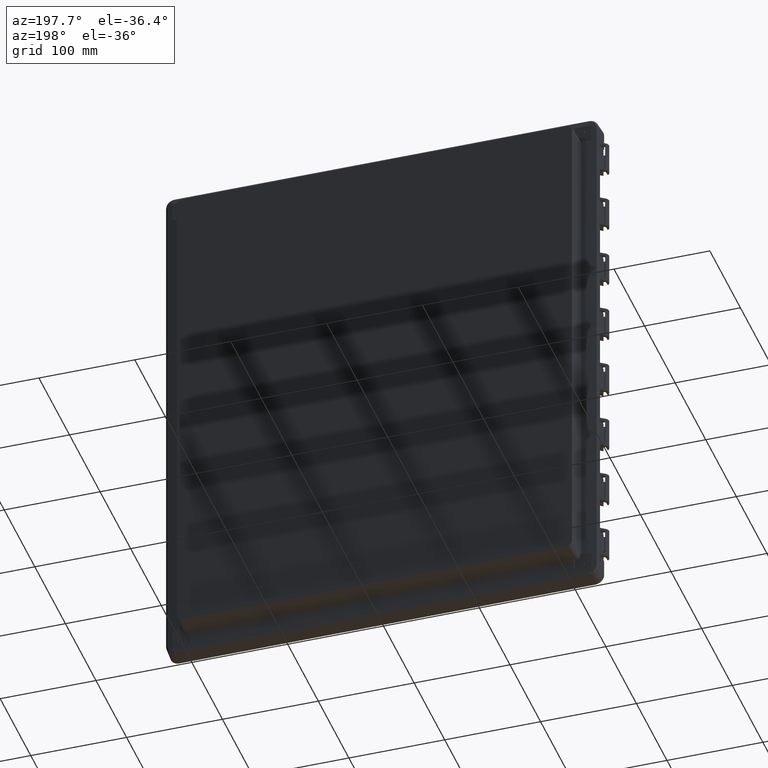
[diagram: clean part render]
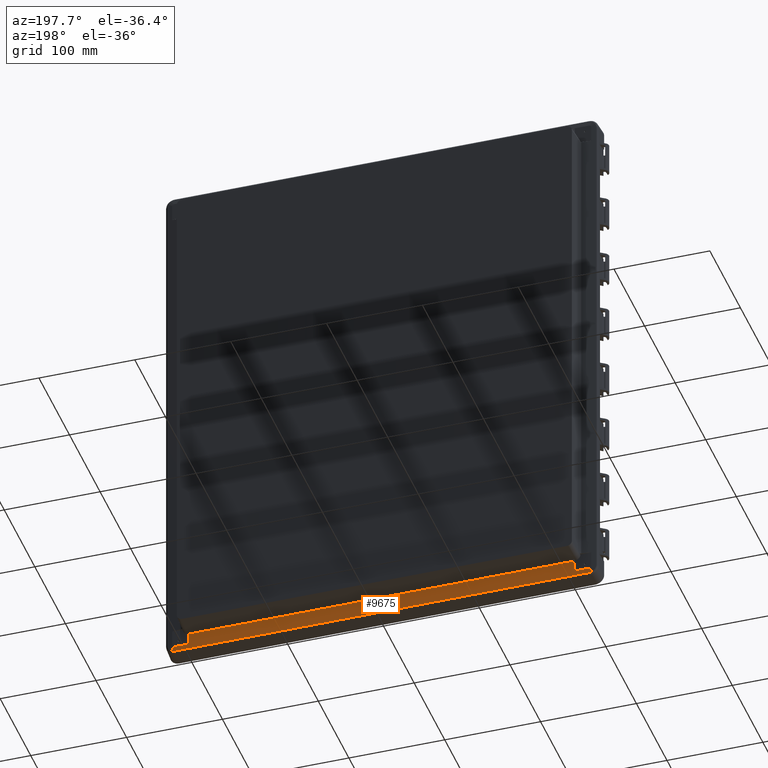
[diagram: same view with one face highlighted and labeled with its STEP entity id]
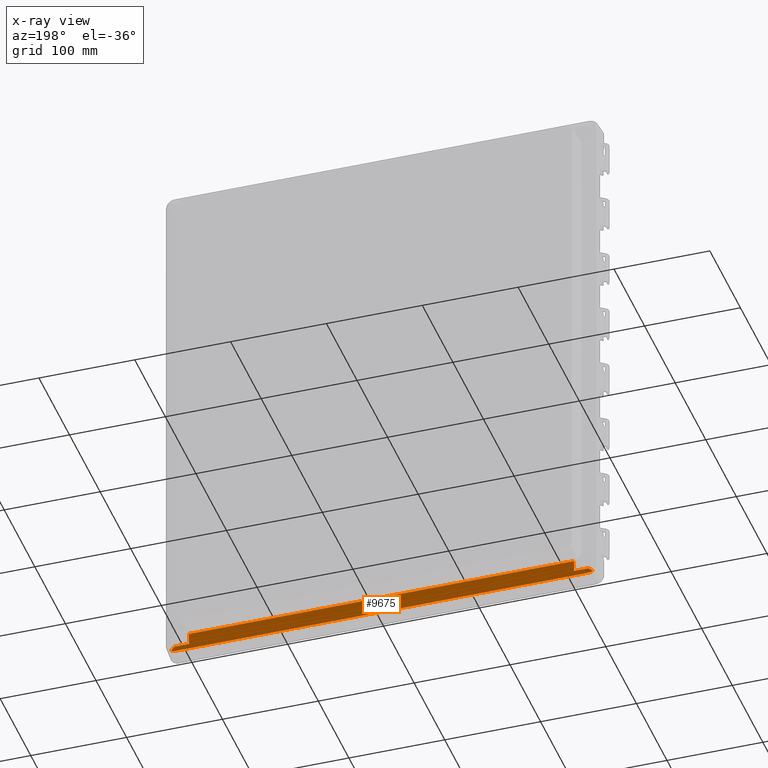
[diagram: x-ray of the same camera — body ghosted, the highlighted face saturated]
A machine part, auxiliary view. The second image highlights one B-rep face of the part: STEP entity #9675.
The next image is the same camera in x-ray: the body ghosted, the highlighted face saturated — about 0% of this face is hidden behind the body in this view.
In plain terms, the highlighted planar face has unit normal (0, -0.9954, 0.0958).
Its self-contained STEP definition (entity closure, byte-faithful):
#7 = CARTESIAN_POINT ( 'NONE',  ( -216.0049375003000000, 5.777531055259000700, -278.3363505158000100 ) ) ;
#98 = ORIENTED_EDGE ( 'NONE', *, *, #6139, .T. ) ;
#185 = VERTEX_POINT ( 'NONE', #7 ) ;
#313 = CARTESIAN_POINT ( 'NONE',  ( -217.7372608833572900, 5.796387470282691200, -278.1405191788059000 ) ) ;
#358 = VECTOR ( 'NONE', #5517, 1000.000000000000000 ) ;
#492 = CARTESIAN_POINT ( 'NONE',  ( 217.3995006904592300, 6.138320091623779900, -274.5894131314651100 ) ) ;
#547 = VERTEX_POINT ( 'NONE', #15652 ) ;
#1115 = VERTEX_POINT ( 'NONE', #10327 ) ;
#1142 = CARTESIAN_POINT ( 'NONE',  ( 200.8719366674586100, 6.628392870464217000, -269.4998127251008700 ) ) ;
#1525 = B_SPLINE_CURVE_WITH_KNOTS ( 'NONE', 3,
 ( #8217, #5990, #3790, #1564 ),
 .UNSPECIFIED., .F., .F.,
 ( 4, 4 ),
 ( 0.0000000000000000000, 1.000000000000000000 ),
 .UNSPECIFIED. ) ;
#1564 = CARTESIAN_POINT ( 'NONE',  ( -216.1040984395999900, 6.263053141324999900, -273.2940108812999800 ) ) ;
#1856 = EDGE_LOOP ( 'NONE', ( #6333, #3701, #6354, #4880, #20766, #19170, #98, #9166, #20407, #13266 ) ) ;
#2060 = CARTESIAN_POINT ( 'NONE',  ( -200.8448150179000000, 7.359072328713001100, -261.9114164127000200 ) ) ;
#2553 = CARTESIAN_POINT ( 'NONE',  ( -217.3966424438995900, 5.789345464886709500, -278.2136532010835600 ) ) ;
#2712 = CARTESIAN_POINT ( 'NONE',  ( 218.6949029413796400, 6.013587041928261100, -275.8848153815696900 ) ) ;
#3350 = CARTESIAN_POINT ( 'NONE',  ( 200.8583758426793200, 6.993732599597505500, -265.7056145689013500 ) ) ;
#3701 = ORIENTED_EDGE ( 'NONE', *, *, #11635, .T. ) ;
#3790 = CARTESIAN_POINT ( 'NONE',  ( -217.3995006908869200, 6.138320091655431900, -274.5894131311971500 ) ) ;
#3927 = B_SPLINE_CURVE_WITH_KNOTS ( 'NONE', 3,
 ( #7792, #3350, #1142, #20456 ),
 .UNSPECIFIED., .F., .F.,
 ( 4, 4 ),
 ( 0.0000000000000000000, 1.000000000000000000 ),
 .UNSPECIFIED. ) ;
#4160 = VERTEX_POINT ( 'NONE', #15200 ) ;
#4163 = VERTEX_POINT ( 'NONE', #12982 ) ;
#4203 = VERTEX_POINT ( 'NONE', #8023 ) ;
#4288 = VERTEX_POINT ( 'NONE', #8147 ) ;
#4355 = VERTEX_POINT ( 'NONE', #11534 ) ;
#4459 = VERTEX_POINT ( 'NONE', #13890 ) ;
#4561 = FACE_OUTER_BOUND ( 'NONE', #1856, .T. ) ;
#4687 = VECTOR ( 'NONE', #15985, 1000.000000000000000 ) ;
#4766 = CARTESIAN_POINT ( 'NONE',  ( -216.7059125722600200, 5.779902103896631600, -278.3117262547365800 ) ) ;
#4880 = ORIENTED_EDGE ( 'NONE', *, *, #4908, .T. ) ;
#4908 = EDGE_CURVE ( 'NONE', #4160, #4163, #9989, .T. ) ;
#5146 = CARTESIAN_POINT ( 'NONE',  ( 216.0049375003000000, 5.777531053140999800, -278.3363505155999700 ) ) ;
#5517 = DIRECTION ( 'NONE',  ( 1.000000000000000000, 0.0000000000000000000, 0.0000000000000000000 ) ) ;
#5573 = EDGE_CURVE ( 'NONE', #19329, #4160, #1525, .T. ) ;
#5990 = CARTESIAN_POINT ( 'NONE',  ( -218.6949029422434900, 6.013587041986583300, -275.8848153810248500 ) ) ;
#6139 = EDGE_CURVE ( 'NONE', #4288, #4355, #3927, .T. ) ;
#6333 = ORIENTED_EDGE ( 'NONE', *, *, #6950, .T. ) ;
#6354 = ORIENTED_EDGE ( 'NONE', *, *, #5573, .T. ) ;
#6950 = EDGE_CURVE ( 'NONE', #547, #185, #16596, .T. ) ;
#6981 = CARTESIAN_POINT ( 'NONE',  ( -216.3571325696667600, 5.777537861505446200, -278.3362798507628200 ) ) ;
#7150 = CARTESIAN_POINT ( 'NONE',  ( 219.9903051923000100, 5.888835322671999600, -277.1802158340000200 ) ) ;
#7360 = CARTESIAN_POINT ( 'NONE',  ( 216.7105626314623000, 5.777553709425019300, -278.3361152638252100 ) ) ;
#7728 = CARTESIAN_POINT ( 'NONE',  ( -216.1040984395999900, 6.263053141324999900, -273.2940108812999800 ) ) ;
#7792 = CARTESIAN_POINT ( 'NONE',  ( 200.8448150179000000, 7.359072328713001100, -261.9114164127000200 ) ) ;
#8023 = CARTESIAN_POINT ( 'NONE',  ( -200.8448150179000000, 7.359072328713001100, -261.9114164127000200 ) ) ;
#8147 = CARTESIAN_POINT ( 'NONE',  ( 200.8448150179000000, 7.359072328713001100, -261.9114164127000200 ) ) ;
#8212 = EDGE_CURVE ( 'NONE', #4459, #4355, #20308, .T. ) ;
#8217 = CARTESIAN_POINT ( 'NONE',  ( -219.9903051935999900, 5.888835320905999800, -277.1802158330000300 ) ) ;
#8610 = DIRECTION ( 'NONE',  ( 0.0000000000000000000, -0.09584575252021800000, -0.9953961983671793000 ) ) ;
#9037 = VECTOR ( 'NONE', #12389, 1000.000000000000000 ) ;
#9166 = ORIENTED_EDGE ( 'NONE', *, *, #8212, .F. ) ;
#9236 = CARTESIAN_POINT ( 'NONE',  ( -216.0049375003000000, 5.777531055259000700, -278.3363505158000100 ) ) ;
#9618 = CARTESIAN_POINT ( 'NONE',  ( 217.4018098315633800, 5.787012996813569300, -278.2378768081998700 ) ) ;
#9675 = ADVANCED_FACE ( 'NONE', ( #4561 ), #15250, .F. ) ;
#9699 = B_SPLINE_CURVE_WITH_KNOTS ( 'NONE', 3,
 ( #2060, #21301, #19197, #17056 ),
 .UNSPECIFIED., .F., .F.,
 ( 4, 4 ),
 ( 0.0000000000000000000, 1.000000000000000000 ),
 .UNSPECIFIED. ) ;
#9977 = DIRECTION ( 'NONE',  ( -1.000000000000000000, 4.903438729708000300E-012, -4.725001184958999700E-013 ) ) ;
#9989 = LINE ( 'NONE', #7728, #358 ) ;
#10327 = CARTESIAN_POINT ( 'NONE',  ( 219.9903051923000100, 5.888835322671999600, -277.1802158340000200 ) ) ;
#10397 = EDGE_CURVE ( 'NONE', #1115, #547, #19936, .T. ) ;
#10833 = DIRECTION ( 'NONE',  ( 0.0000000000000000000, -0.9953961983671794100, 0.09584575252021801400 ) ) ;
#11354 = CARTESIAN_POINT ( 'NONE',  ( -219.9903051935999900, 5.888835320905999800, -277.1802158330000300 ) ) ;
#11534 = CARTESIAN_POINT ( 'NONE',  ( 200.8854974921999900, 6.263053141324999900, -273.2940108812999800 ) ) ;
#11635 = EDGE_CURVE ( 'NONE', #185, #19329, #15870, .T. ) ;
#11802 = CARTESIAN_POINT ( 'NONE',  ( 218.4171137351229400, 5.815356880668295100, -277.9435143195752300 ) ) ;
#12159 = CARTESIAN_POINT ( 'NONE',  ( 216.0049375003000000, 5.777531053140999800, -278.3363505155999700 ) ) ;
#12389 = DIRECTION ( 'NONE',  ( -1.000000000000000000, 0.0000000000000000000, 0.0000000000000000000 ) ) ;
#12982 = CARTESIAN_POINT ( 'NONE',  ( -200.8854974921999900, 6.263053141324999900, -273.2940108812999800 ) ) ;
#13024 = CARTESIAN_POINT ( 'NONE',  ( 170.5759222071999900, 6.000000000000000000, -276.0259222072000400 ) ) ;
#13107 = EDGE_CURVE ( 'NONE', #4203, #4163, #9699, .T. ) ;
#13266 = ORIENTED_EDGE ( 'NONE', *, *, #10397, .T. ) ;
#13822 = VECTOR ( 'NONE', #9977, 1000.000000000000000 ) ;
#13890 = CARTESIAN_POINT ( 'NONE',  ( 216.1040984395999900, 6.263053141324999900, -273.2940108812999800 ) ) ;
#14026 = CARTESIAN_POINT ( 'NONE',  ( 218.7480255275920900, 5.827059735742617300, -277.8219755226570600 ) ) ;
#14591 = CARTESIAN_POINT ( 'NONE',  ( 200.8448150179000000, 7.359072328713001100, -261.9114164127000200 ) ) ;
#14793 = EDGE_CURVE ( 'NONE', #4288, #4203, #16828, .T. ) ;
#15200 = CARTESIAN_POINT ( 'NONE',  ( -216.1040984395999900, 6.263053141324999900, -273.2940108812999800 ) ) ;
#15250 = PLANE ( 'NONE',  #17563 ) ;
#15327 = CARTESIAN_POINT ( 'NONE',  ( -219.9903051935999900, 5.888835320905999800, -277.1802158330000300 ) ) ;
#15652 = CARTESIAN_POINT ( 'NONE',  ( 216.0049375003000000, 5.777531053140999800, -278.3363505155999700 ) ) ;
#15870 = B_SPLINE_CURVE_WITH_KNOTS ( 'NONE', 3,
 ( #9236, #6981, #4766, #2553, #313, #19675, #17538, #15327 ),
 .UNSPECIFIED., .F., .F.,
 ( 4, 2, 2, 4 ),
 ( 0.0000000000000000000, 0.2500000000000047200, 0.5000000000000094400, 1.000000000000000000 ),
 .UNSPECIFIED. ) ;
#15985 = DIRECTION ( 'NONE',  ( -1.000000000000000000, 0.0000000000000000000, 0.0000000000000000000 ) ) ;
#16239 = CARTESIAN_POINT ( 'NONE',  ( 219.3852342248243900, 5.854708093361004700, -277.5348363501764200 ) ) ;
#16596 = LINE ( 'NONE', #12159, #13822 ) ;
#16828 = LINE ( 'NONE', #14591, #9037 ) ;
#17056 = CARTESIAN_POINT ( 'NONE',  ( -200.8854974921999900, 6.263053141324999900, -273.2940108812999800 ) ) ;
#17538 = CARTESIAN_POINT ( 'NONE',  ( -219.3945856050688100, 5.852472764042780700, -277.5580511327511300 ) ) ;
#17563 = AXIS2_PLACEMENT_3D ( 'NONE', #13024, #10833, #8610 ) ;
#18087 = EDGE_CURVE ( 'NONE', #1115, #4459, #18905, .T. ) ;
#18155 = CARTESIAN_POINT ( 'NONE',  ( 216.1040984395999900, 6.263053141324999900, -273.2940108812999800 ) ) ;
#18404 = CARTESIAN_POINT ( 'NONE',  ( 219.6931259968550000, 5.870698119256586800, -277.3687735819291900 ) ) ;
#18905 = B_SPLINE_CURVE_WITH_KNOTS ( 'NONE', 3,
 ( #7150, #2712, #492, #19839 ),
 .UNSPECIFIED., .F., .F.,
 ( 4, 4 ),
 ( 0.0000000000000000000, 1.000000000000000000 ),
 .UNSPECIFIED. ) ;
#19170 = ORIENTED_EDGE ( 'NONE', *, *, #14793, .F. ) ;
#19197 = CARTESIAN_POINT ( 'NONE',  ( -200.8719368436132400, 6.628408095916691800, -269.4998141902562500 ) ) ;
#19329 = VERTEX_POINT ( 'NONE', #11354 ) ;
#19675 = CARTESIAN_POINT ( 'NONE',  ( -218.7568595789416300, 5.824808479999647100, -277.8453557074768100 ) ) ;
#19839 = CARTESIAN_POINT ( 'NONE',  ( 216.1040984395999900, 6.263053141324999900, -273.2940108812999800 ) ) ;
#19936 = B_SPLINE_CURVE_WITH_KNOTS ( 'NONE', 3,
 ( #21032, #18404, #16239, #14026, #11802, #9618, #7360, #5146 ),
 .UNSPECIFIED., .F., .F.,
 ( 4, 2, 2, 4 ),
 ( 0.0000000000000000000, 0.2500000000000027800, 0.5000000000000055500, 1.000000000000000000 ),
 .UNSPECIFIED. ) ;
#20308 = LINE ( 'NONE', #18155, #4687 ) ;
#20407 = ORIENTED_EDGE ( 'NONE', *, *, #18087, .F. ) ;
#20456 = CARTESIAN_POINT ( 'NONE',  ( 200.8854974921999900, 6.263053141324999900, -273.2940108812999800 ) ) ;
#20766 = ORIENTED_EDGE ( 'NONE', *, *, #13107, .F. ) ;
#21032 = CARTESIAN_POINT ( 'NONE',  ( 219.9903051923000100, 5.888835322671999600, -277.1802158340000200 ) ) ;
#21301 = CARTESIAN_POINT ( 'NONE',  ( -200.8583762322787700, 6.993761105719887200, -265.7056173117626900 ) ) ;